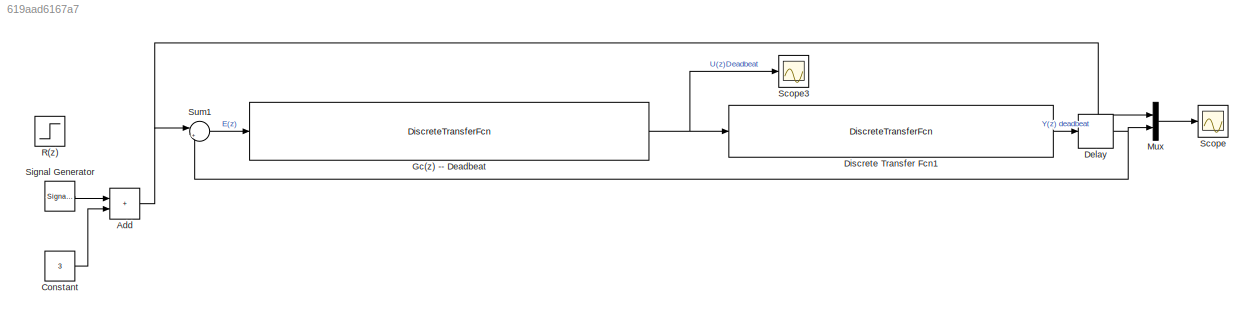
MODEL slx_619aad6167a7
KIND model
CONFIG AbsTol = auto
CONFIG EnableMultiTasking = off
CONFIG FixedStep = auto
CONFIG MaxStep = auto
CONFIG MinStep = auto
CONFIG RelTol = 1e-3
CONFIG SampleTimeConstraint = Unconstrained
CONFIG SolverName = VariableStepAuto
CONFIG StartTime = 0.0
CONFIG StopTime = 200
BLOCK [Sum] Add
  IconShape = rectangular
BLOCK [Constant] Constant
  Value = 3
BLOCK [Delay] Delay
  DelayLength = 1
  InputPortMap = u0
BLOCK [DiscreteTransferFcn] Discrete Transfer Fcn1
  Denominator = [1 0.41 -0.2644 -0.1695 0 ]
  InputPortMap = u0
  Numerator = [0.055 0.02255 0.04212 0.07212]
  SampleTime = 1
BLOCK [DiscreteTransferFcn] Gc(z) -- Deadbeat
  Denominator = [0.055 0.02255 -0.01288 0.04957 -0.04212 -0.07212]
  InputPortMap = u0
  Numerator = [1 0.41 -0.2644 -0.1695 0]
  SampleTime = 1
BLOCK [Mux] Mux
  DisplayOption = bar
  Inputs = 2
BLOCK [Step] R(z)
  After = 6
  SampleTime = 0
  Time = 10
BLOCK [Scope] Scope
  Floating = off
  NumInputPorts = 1
  ScopeSpecificationString = Simulink.scopes.TimeScopeBlockCfg('CurrentConfiguration', extmgr.ConfigurationSet(extmgr.Configuration('Core','General UI',true),extmgr.Configuration('Core','Source UI',true),extmgr.Configuration('Sources','WiredSimulink',true,'DataLoggingVariableName','ScopeData1'),extmgr.Configuration('Visuals','Time Domain',true,'SerializedDisplays',{struct('MinYLimReal','-910829582123654275137536.00000','MaxYL...<+1579ch>
BLOCK [Scope] Scope3
  Floating = off
  NumInputPorts = 1
  ScopeSpecificationString = Simulink.scopes.TimeScopeBlockCfg('CurrentConfiguration', extmgr.ConfigurationSet(extmgr.Configuration('Core','General UI',true),extmgr.Configuration('Core','Source UI',true),extmgr.Configuration('Sources','WiredSimulink',true,'DataLoggingVariableName','ScopeData3'),extmgr.Configuration('Visuals','Time Domain',true,'SerializedDisplays',{struct('MinYLimReal','-31638730764119690448994304.00000','Max...<+1621ch>
BLOCK [SignalGenerator] Signal Generator
  Amplitude = 5
  Frequency = 0.2
  WaveForm = square
BLOCK [Sum] Sum1
  Inputs = |+-
NET Add:1 -> Mux:1, Sum1:1
LINE Constant:1 -> Add:2
NET Delay:1 -> Mux:2, Sum1:2
LINE Discrete Transfer Fcn1:1 -> Delay:1
NET Gc(z) -- Deadbeat:1 -> Discrete Transfer Fcn1:1, Scope3:1
LINE Mux:1 -> Scope:1
LINE Signal Generator:1 -> Add:1
LINE Sum1:1 -> Gc(z) -- Deadbeat:1
note: NET lines group one-source signal fan-out (src -> all destinations, sorted); 1:1 wires keep LINE
